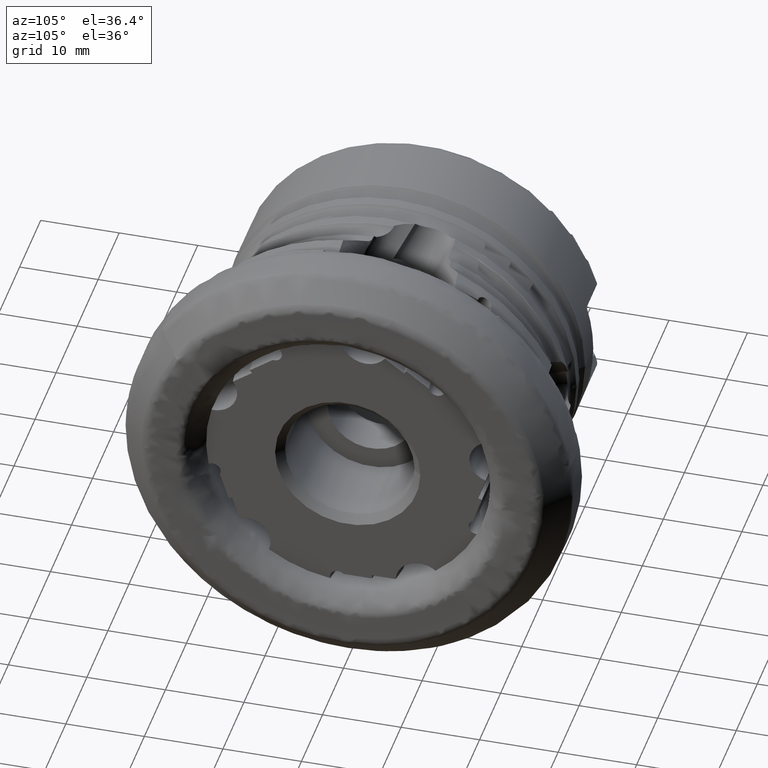
[diagram: clean part render]
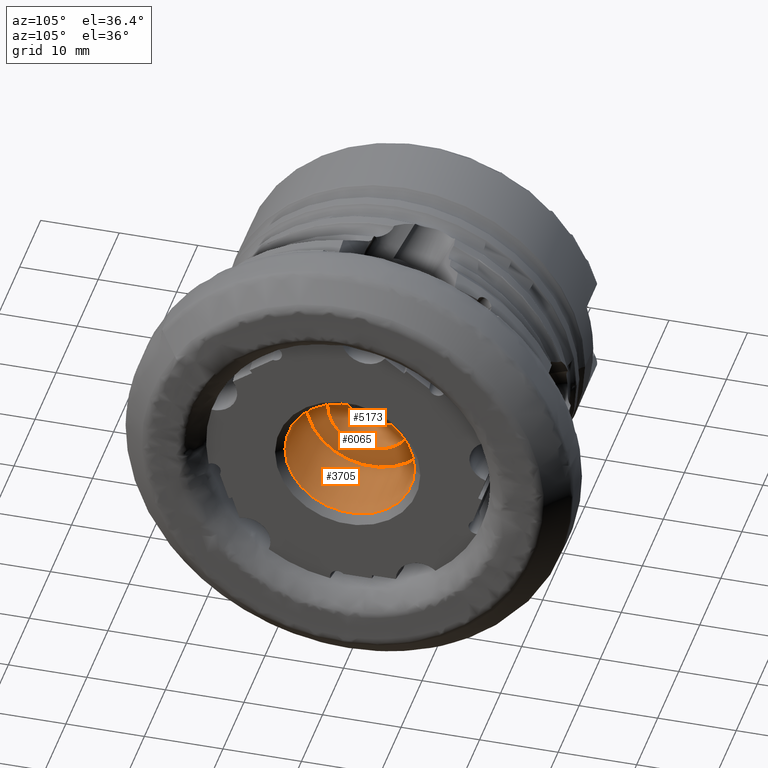
[diagram: same view with one multi-face feature highlighted, each face labeled with its STEP entity id]
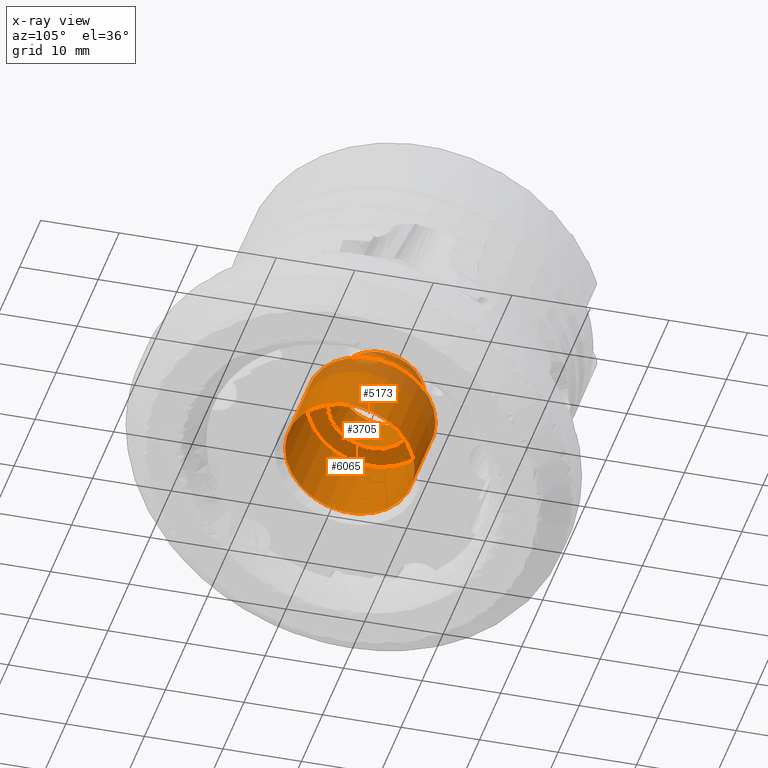
[diagram: x-ray of the same camera — body ghosted, the whole feature saturated]
A machine part, auxiliary view. The highlighted faces form ONE feature: a stepped (counterbored) hole: 2 coaxial cylindrical walls of radii 5.5 -> 8.25 mm joined by 1 annular planar shoulder face(s). The faces share edges in the B-rep.
The next image is the same camera in x-ray: the body ghosted and the whole hole feature saturated, so the bore chain is visible through the body.
Their STEP definitions:
[1] entity #3705 (Cylinder):
#224 = CARTESIAN_POINT ( 'NONE',  ( -2.999999999999992900, -4.959837185658079300E-016, 0.0000000000000000000 ) ) ;
#1666 = DIRECTION ( 'NONE',  ( -1.577021341797097300E-016, 1.000000000000000000, 0.0000000000000000000 ) ) ;
#1857 = CARTESIAN_POINT ( 'NONE',  ( -13.00000000000000400, 8.249999999999998200, 0.0000000000000000000 ) ) ;
#2393 = CARTESIAN_POINT ( 'NONE',  ( -13.00000000000000200, -2.149262780451840200E-015, 0.0000000000000000000 ) ) ;
#2655 = VERTEX_POINT ( 'NONE', #1857 ) ;
#2943 = ORIENTED_EDGE ( 'NONE', *, *, #6114, .T. ) ;
#3084 = CIRCLE ( 'NONE', #7439, 8.250000000000000000 ) ;
#3224 = DIRECTION ( 'NONE',  ( -2.102695122396129900E-016, 1.000000000000000000, 0.0000000000000000000 ) ) ;
#3262 = DIRECTION ( 'NONE',  ( -1.653279061886031300E-016, 1.000000000000000000, 0.0000000000000000000 ) ) ;
#3506 = CARTESIAN_POINT ( 'NONE',  ( -8.673617379884035500E-016, 0.0000000000000000000, 0.0000000000000000000 ) ) ;
#3514 = FACE_OUTER_BOUND ( 'NONE', #7900, .T. ) ;
#3705 = ADVANCED_FACE ( 'NONE', ( #3514, #9701 ), #9429, .F. ) ;
#4472 = CIRCLE ( 'NONE', #4499, 8.250000000000000000 ) ;
#4499 = AXIS2_PLACEMENT_3D ( 'NONE', #224, #9355, #1666 ) ;
#4823 = VERTEX_POINT ( 'NONE', #7561 ) ;
#5001 = DIRECTION ( 'NONE',  ( 1.000000000000000000, 1.653279061886031000E-016, -0.0000000000000000000 ) ) ;
#5754 = AXIS2_PLACEMENT_3D ( 'NONE', #3506, #5001, #3262 ) ;
#5972 = EDGE_LOOP ( 'NONE', ( #2943 ) ) ;
#6114 = EDGE_CURVE ( 'NONE', #4823, #4823, #4472, .T. ) ;
#7212 = EDGE_CURVE ( 'NONE', #2655, #2655, #3084, .T. ) ;
#7439 = AXIS2_PLACEMENT_3D ( 'NONE', #2393, #8056, #3224 ) ;
#7561 = CARTESIAN_POINT ( 'NONE',  ( -2.999999999999993800, 8.250000000000000000, 0.0000000000000000000 ) ) ;
#7900 = EDGE_LOOP ( 'NONE', ( #9669 ) ) ;
#8056 = DIRECTION ( 'NONE',  ( 1.000000000000000000, 1.653279061886031000E-016, -0.0000000000000000000 ) ) ;
#9355 = DIRECTION ( 'NONE',  ( 1.000000000000000000, 1.653279061886031000E-016, -0.0000000000000000000 ) ) ;
#9429 = CYLINDRICAL_SURFACE ( 'NONE', #5754, 8.250000000000000000 ) ;
#9669 = ORIENTED_EDGE ( 'NONE', *, *, #7212, .F. ) ;
#9701 = FACE_OUTER_BOUND ( 'NONE', #5972, .T. ) ;
[2] entity #5173 (Cylinder):
#94 = CIRCLE ( 'NONE', #380, 5.500000000000000000 ) ;
#195 = DIRECTION ( 'NONE',  ( 1.000000000000000000, 1.653279061886031000E-016, -0.0000000000000000000 ) ) ;
#380 = AXIS2_PLACEMENT_3D ( 'NONE', #2077, #800, #4174 ) ;
#468 = DIRECTION ( 'NONE',  ( -1.653279061886031500E-016, 1.000000000000000000, 0.0000000000000000000 ) ) ;
#525 = ORIENTED_EDGE ( 'NONE', *, *, #7848, .T. ) ;
#800 = DIRECTION ( 'NONE',  ( 1.000000000000000000, 1.653279061886031000E-016, -0.0000000000000000000 ) ) ;
#959 = ORIENTED_EDGE ( 'NONE', *, *, #1931, .F. ) ;
#1794 = CYLINDRICAL_SURFACE ( 'NONE', #4561, 5.500000000000000000 ) ;
#1931 = EDGE_CURVE ( 'NONE', #9360, #9360, #94, .T. ) ;
#2077 = CARTESIAN_POINT ( 'NONE',  ( -18.15000000000000200, -3.000701497323146600E-015, 0.0000000000000000000 ) ) ;
#2300 = DIRECTION ( 'NONE',  ( -3.154042683594194600E-016, 1.000000000000000000, 0.0000000000000000000 ) ) ;
#2331 = CIRCLE ( 'NONE', #5909, 5.500000000000000000 ) ;
#2761 = CARTESIAN_POINT ( 'NONE',  ( -13.00000000000000200, -2.149262780451840200E-015, 0.0000000000000000000 ) ) ;
#3055 = EDGE_LOOP ( 'NONE', ( #959 ) ) ;
#4174 = DIRECTION ( 'NONE',  ( 0.0000000000000000000, 1.000000000000000000, 0.0000000000000000000 ) ) ;
#4283 = CARTESIAN_POINT ( 'NONE',  ( -18.15000000000000200, 5.499999999999997300, 0.0000000000000000000 ) ) ;
#4561 = AXIS2_PLACEMENT_3D ( 'NONE', #4911, #195, #468 ) ;
#4911 = CARTESIAN_POINT ( 'NONE',  ( -8.673617379884035500E-016, 0.0000000000000000000, 0.0000000000000000000 ) ) ;
#5173 = ADVANCED_FACE ( 'NONE', ( #8275, #6621 ), #1794, .F. ) ;
#5909 = AXIS2_PLACEMENT_3D ( 'NONE', #2761, #6360, #2300 ) ;
#6360 = DIRECTION ( 'NONE',  ( 1.000000000000000000, 1.653279061886031000E-016, -0.0000000000000000000 ) ) ;
#6621 = FACE_OUTER_BOUND ( 'NONE', #8468, .T. ) ;
#6723 = CARTESIAN_POINT ( 'NONE',  ( -13.00000000000000400, 5.499999999999998200, 0.0000000000000000000 ) ) ;
#7848 = EDGE_CURVE ( 'NONE', #8869, #8869, #2331, .T. ) ;
#8275 = FACE_OUTER_BOUND ( 'NONE', #3055, .T. ) ;
#8468 = EDGE_LOOP ( 'NONE', ( #525 ) ) ;
#8869 = VERTEX_POINT ( 'NONE', #6723 ) ;
#9360 = VERTEX_POINT ( 'NONE', #4283 ) ;
[3] entity #6065 (Plane):
#1183 = DIRECTION ( 'NONE',  ( -1.000000000000000000, -1.653279061886031000E-016, 0.0000000000000000000 ) ) ;
#1857 = CARTESIAN_POINT ( 'NONE',  ( -13.00000000000000400, 8.249999999999998200, 0.0000000000000000000 ) ) ;
#2067 = PLANE ( 'NONE',  #3972 ) ;
#2108 = ORIENTED_EDGE ( 'NONE', *, *, #7212, .T. ) ;
#2300 = DIRECTION ( 'NONE',  ( -3.154042683594194600E-016, 1.000000000000000000, 0.0000000000000000000 ) ) ;
#2331 = CIRCLE ( 'NONE', #5909, 5.500000000000000000 ) ;
#2393 = CARTESIAN_POINT ( 'NONE',  ( -13.00000000000000200, -2.149262780451840200E-015, 0.0000000000000000000 ) ) ;
#2655 = VERTEX_POINT ( 'NONE', #1857 ) ;
#2761 = CARTESIAN_POINT ( 'NONE',  ( -13.00000000000000200, -2.149262780451840200E-015, 0.0000000000000000000 ) ) ;
#2971 = EDGE_LOOP ( 'NONE', ( #2108 ) ) ;
#3084 = CIRCLE ( 'NONE', #7439, 8.250000000000000000 ) ;
#3224 = DIRECTION ( 'NONE',  ( -2.102695122396129900E-016, 1.000000000000000000, 0.0000000000000000000 ) ) ;
#3972 = AXIS2_PLACEMENT_3D ( 'NONE', #4821, #1183, #6913 ) ;
#4230 = FACE_OUTER_BOUND ( 'NONE', #2971, .T. ) ;
#4821 = CARTESIAN_POINT ( 'NONE',  ( -13.00000000000000200, 8.249999999999998200, 0.0000000000000000000 ) ) ;
#5188 = ORIENTED_EDGE ( 'NONE', *, *, #7848, .F. ) ;
#5909 = AXIS2_PLACEMENT_3D ( 'NONE', #2761, #6360, #2300 ) ;
#6065 = ADVANCED_FACE ( 'NONE', ( #10430, #4230 ), #2067, .F. ) ;
#6360 = DIRECTION ( 'NONE',  ( 1.000000000000000000, 1.653279061886031000E-016, -0.0000000000000000000 ) ) ;
#6723 = CARTESIAN_POINT ( 'NONE',  ( -13.00000000000000400, 5.499999999999998200, 0.0000000000000000000 ) ) ;
#6913 = DIRECTION ( 'NONE',  ( 1.653279061886031000E-016, -1.000000000000000000, 0.0000000000000000000 ) ) ;
#7068 = EDGE_LOOP ( 'NONE', ( #5188 ) ) ;
#7212 = EDGE_CURVE ( 'NONE', #2655, #2655, #3084, .T. ) ;
#7439 = AXIS2_PLACEMENT_3D ( 'NONE', #2393, #8056, #3224 ) ;
#7848 = EDGE_CURVE ( 'NONE', #8869, #8869, #2331, .T. ) ;
#8056 = DIRECTION ( 'NONE',  ( 1.000000000000000000, 1.653279061886031000E-016, -0.0000000000000000000 ) ) ;
#8869 = VERTEX_POINT ( 'NONE', #6723 ) ;
#10430 = FACE_BOUND ( 'NONE', #7068, .T. ) ;